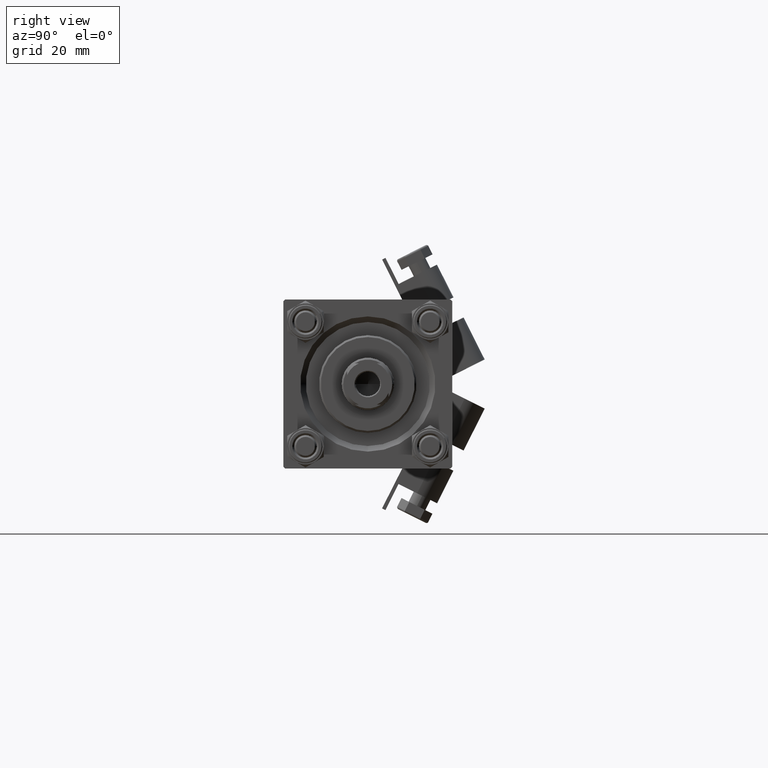
[diagram: clean part render]
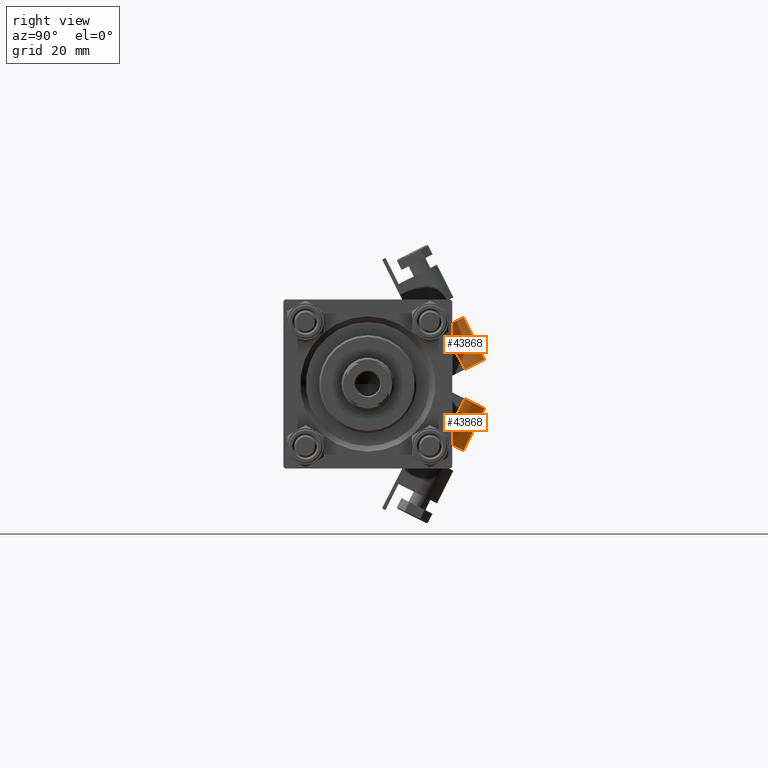
[diagram: same view with one multi-face feature highlighted, each face labeled with its STEP entity id]
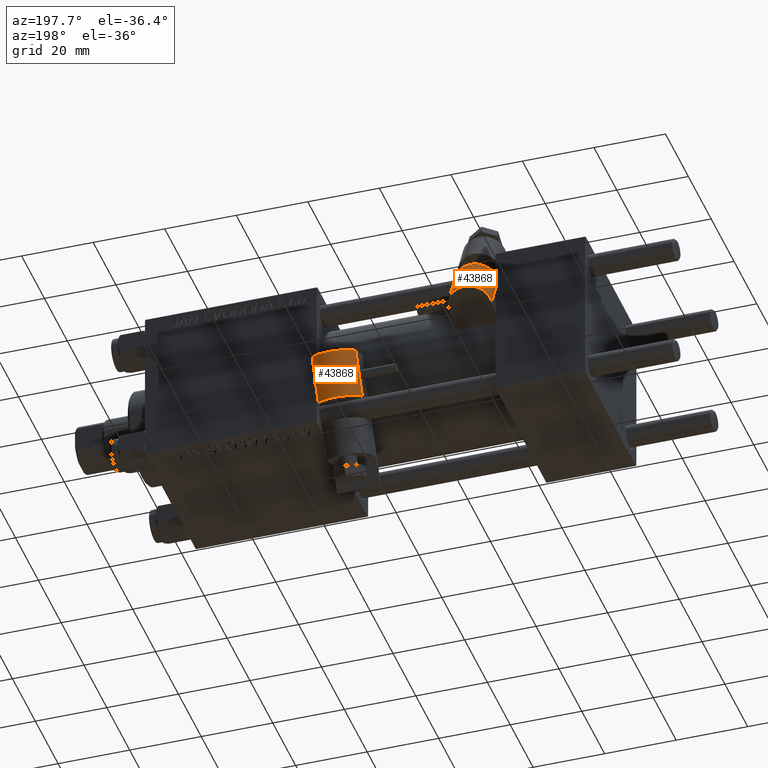
[diagram: same view with one multi-face feature highlighted, each face labeled with its STEP entity id]
A machine part, right view. The highlighted faces form ONE feature: a constant-radius fillet chain: 2 tangent blend faces with common blend radius 6 mm. The faces share edges in the B-rep.
A second angle (auxiliary view) of the same feature is appended — it is thin or edge-on in the first view.
Their STEP definitions:
[1] entity #43868 (Cylinder):
#319 = CYLINDRICAL_SURFACE ( 'NONE', #47669, 6.000000000000002665 ) ;
#650 = CARTESIAN_POINT ( 'NONE',  ( 15.74000000000000021, 6.499999999999999112, 6.000000000000006217 ) ) ;
#841 = DIRECTION ( 'NONE',  ( 1.000000000000000000, 0.000000000000000000, 0.000000000000000000 ) ) ;
#1942 = AXIS2_PLACEMENT_3D ( 'NONE', #36151, #841, #32562 ) ;
#2001 = EDGE_CURVE ( 'NONE', #16285, #47055, #45989, .T. ) ;
#5884 = CARTESIAN_POINT ( 'NONE',  ( 28.24000000000000199, 6.499999999999999112, 6.000000000000006217 ) ) ;
#7860 = LINE ( 'NONE', #38812, #48108 ) ;
#11918 = CARTESIAN_POINT ( 'NONE',  ( 28.24000000000000199, 6.500000000000000000, 2.255140518769849223E-14 ) ) ;
#13383 = LINE ( 'NONE', #5884, #23670 ) ;
#13498 = CIRCLE ( 'NONE', #1942, 6.000000000000002665 ) ;
#13511 = ORIENTED_EDGE ( 'NONE', *, *, #2001, .T. ) ;
#14339 = CARTESIAN_POINT ( 'NONE',  ( 15.74000000000000021, 6.500000000000000000, 2.255140518769849223E-14 ) ) ;
#16285 = VERTEX_POINT ( 'NONE', #27186 ) ;
#21634 = DIRECTION ( 'NONE',  ( -1.000000000000000000, -0.000000000000000000, -0.000000000000000000 ) ) ;
#23360 = EDGE_CURVE ( 'NONE', #40458, #37763, #13498, .T. ) ;
#23670 = VECTOR ( 'NONE', #21634, 1000.000000000000000 ) ;
#25741 = ORIENTED_EDGE ( 'NONE', *, *, #35512, .F. ) ;
#26826 = EDGE_LOOP ( 'NONE', ( #13511, #25741, #34615, #45121 ) ) ;
#27048 = CARTESIAN_POINT ( 'NONE',  ( 28.24000000000000199, 6.500000000000000000, -5.999999999999980460 ) ) ;
#27186 = CARTESIAN_POINT ( 'NONE',  ( 15.74000000000000021, 6.500000000000000000, -5.999999999999980460 ) ) ;
#27657 = DIRECTION ( 'NONE',  ( -1.000000000000000000, -0.000000000000000000, -0.000000000000000000 ) ) ;
#29758 = EDGE_CURVE ( 'NONE', #40458, #16285, #7860, .T. ) ;
#31088 = DIRECTION ( 'NONE',  ( -1.000000000000000000, -0.000000000000000000, -0.000000000000000000 ) ) ;
#31972 = CARTESIAN_POINT ( 'NONE',  ( 28.24000000000000199, 6.499999999999999112, 6.000000000000006217 ) ) ;
#32562 = DIRECTION ( 'NONE',  ( 0.000000000000000000, 0.000000000000000000, -1.000000000000000000 ) ) ;
#34184 = DIRECTION ( 'NONE',  ( 1.000000000000000000, 0.000000000000000000, 0.000000000000000000 ) ) ;
#34478 = AXIS2_PLACEMENT_3D ( 'NONE', #14339, #34184, #41389 ) ;
#34615 = ORIENTED_EDGE ( 'NONE', *, *, #23360, .F. ) ;
#35383 = FACE_OUTER_BOUND ( 'NONE', #26826, .T. ) ;
#35512 = EDGE_CURVE ( 'NONE', #37763, #47055, #13383, .T. ) ;
#35888 = DIRECTION ( 'NONE',  ( 0.000000000000000000, 0.000000000000000000, 1.000000000000000000 ) ) ;
#36151 = CARTESIAN_POINT ( 'NONE',  ( 28.24000000000000199, 6.500000000000000000, 2.255140518769849223E-14 ) ) ;
#37763 = VERTEX_POINT ( 'NONE', #31972 ) ;
#38812 = CARTESIAN_POINT ( 'NONE',  ( 28.24000000000000199, 6.500000000000000000, -5.999999999999980460 ) ) ;
#40458 = VERTEX_POINT ( 'NONE', #27048 ) ;
#41389 = DIRECTION ( 'NONE',  ( 0.000000000000000000, 0.000000000000000000, -1.000000000000000000 ) ) ;
#43868 = ADVANCED_FACE ( 'NONE', ( #35383 ), #319, .T. ) ;
#45121 = ORIENTED_EDGE ( 'NONE', *, *, #29758, .T. ) ;
#45989 = CIRCLE ( 'NONE', #34478, 6.000000000000002665 ) ;
#47055 = VERTEX_POINT ( 'NONE', #650 ) ;
#47669 = AXIS2_PLACEMENT_3D ( 'NONE', #11918, #27657, #35888 ) ;
#48108 = VECTOR ( 'NONE', #31088, 1000.000000000000000 ) ;
[2] entity #43868 (Cylinder):
#319 = CYLINDRICAL_SURFACE ( 'NONE', #47669, 6.000000000000002665 ) ;
#650 = CARTESIAN_POINT ( 'NONE',  ( 15.74000000000000021, 6.499999999999999112, 6.000000000000006217 ) ) ;
#841 = DIRECTION ( 'NONE',  ( 1.000000000000000000, 0.000000000000000000, 0.000000000000000000 ) ) ;
#1942 = AXIS2_PLACEMENT_3D ( 'NONE', #36151, #841, #32562 ) ;
#2001 = EDGE_CURVE ( 'NONE', #16285, #47055, #45989, .T. ) ;
#5884 = CARTESIAN_POINT ( 'NONE',  ( 28.24000000000000199, 6.499999999999999112, 6.000000000000006217 ) ) ;
#7860 = LINE ( 'NONE', #38812, #48108 ) ;
#11918 = CARTESIAN_POINT ( 'NONE',  ( 28.24000000000000199, 6.500000000000000000, 2.255140518769849223E-14 ) ) ;
#13383 = LINE ( 'NONE', #5884, #23670 ) ;
#13498 = CIRCLE ( 'NONE', #1942, 6.000000000000002665 ) ;
#13511 = ORIENTED_EDGE ( 'NONE', *, *, #2001, .T. ) ;
#14339 = CARTESIAN_POINT ( 'NONE',  ( 15.74000000000000021, 6.500000000000000000, 2.255140518769849223E-14 ) ) ;
#16285 = VERTEX_POINT ( 'NONE', #27186 ) ;
#21634 = DIRECTION ( 'NONE',  ( -1.000000000000000000, -0.000000000000000000, -0.000000000000000000 ) ) ;
#23360 = EDGE_CURVE ( 'NONE', #40458, #37763, #13498, .T. ) ;
#23670 = VECTOR ( 'NONE', #21634, 1000.000000000000000 ) ;
#25741 = ORIENTED_EDGE ( 'NONE', *, *, #35512, .F. ) ;
#26826 = EDGE_LOOP ( 'NONE', ( #13511, #25741, #34615, #45121 ) ) ;
#27048 = CARTESIAN_POINT ( 'NONE',  ( 28.24000000000000199, 6.500000000000000000, -5.999999999999980460 ) ) ;
#27186 = CARTESIAN_POINT ( 'NONE',  ( 15.74000000000000021, 6.500000000000000000, -5.999999999999980460 ) ) ;
#27657 = DIRECTION ( 'NONE',  ( -1.000000000000000000, -0.000000000000000000, -0.000000000000000000 ) ) ;
#29758 = EDGE_CURVE ( 'NONE', #40458, #16285, #7860, .T. ) ;
#31088 = DIRECTION ( 'NONE',  ( -1.000000000000000000, -0.000000000000000000, -0.000000000000000000 ) ) ;
#31972 = CARTESIAN_POINT ( 'NONE',  ( 28.24000000000000199, 6.499999999999999112, 6.000000000000006217 ) ) ;
#32562 = DIRECTION ( 'NONE',  ( 0.000000000000000000, 0.000000000000000000, -1.000000000000000000 ) ) ;
#34184 = DIRECTION ( 'NONE',  ( 1.000000000000000000, 0.000000000000000000, 0.000000000000000000 ) ) ;
#34478 = AXIS2_PLACEMENT_3D ( 'NONE', #14339, #34184, #41389 ) ;
#34615 = ORIENTED_EDGE ( 'NONE', *, *, #23360, .F. ) ;
#35383 = FACE_OUTER_BOUND ( 'NONE', #26826, .T. ) ;
#35512 = EDGE_CURVE ( 'NONE', #37763, #47055, #13383, .T. ) ;
#35888 = DIRECTION ( 'NONE',  ( 0.000000000000000000, 0.000000000000000000, 1.000000000000000000 ) ) ;
#36151 = CARTESIAN_POINT ( 'NONE',  ( 28.24000000000000199, 6.500000000000000000, 2.255140518769849223E-14 ) ) ;
#37763 = VERTEX_POINT ( 'NONE', #31972 ) ;
#38812 = CARTESIAN_POINT ( 'NONE',  ( 28.24000000000000199, 6.500000000000000000, -5.999999999999980460 ) ) ;
#40458 = VERTEX_POINT ( 'NONE', #27048 ) ;
#41389 = DIRECTION ( 'NONE',  ( 0.000000000000000000, 0.000000000000000000, -1.000000000000000000 ) ) ;
#43868 = ADVANCED_FACE ( 'NONE', ( #35383 ), #319, .T. ) ;
#45121 = ORIENTED_EDGE ( 'NONE', *, *, #29758, .T. ) ;
#45989 = CIRCLE ( 'NONE', #34478, 6.000000000000002665 ) ;
#47055 = VERTEX_POINT ( 'NONE', #650 ) ;
#47669 = AXIS2_PLACEMENT_3D ( 'NONE', #11918, #27657, #35888 ) ;
#48108 = VECTOR ( 'NONE', #31088, 1000.000000000000000 ) ;